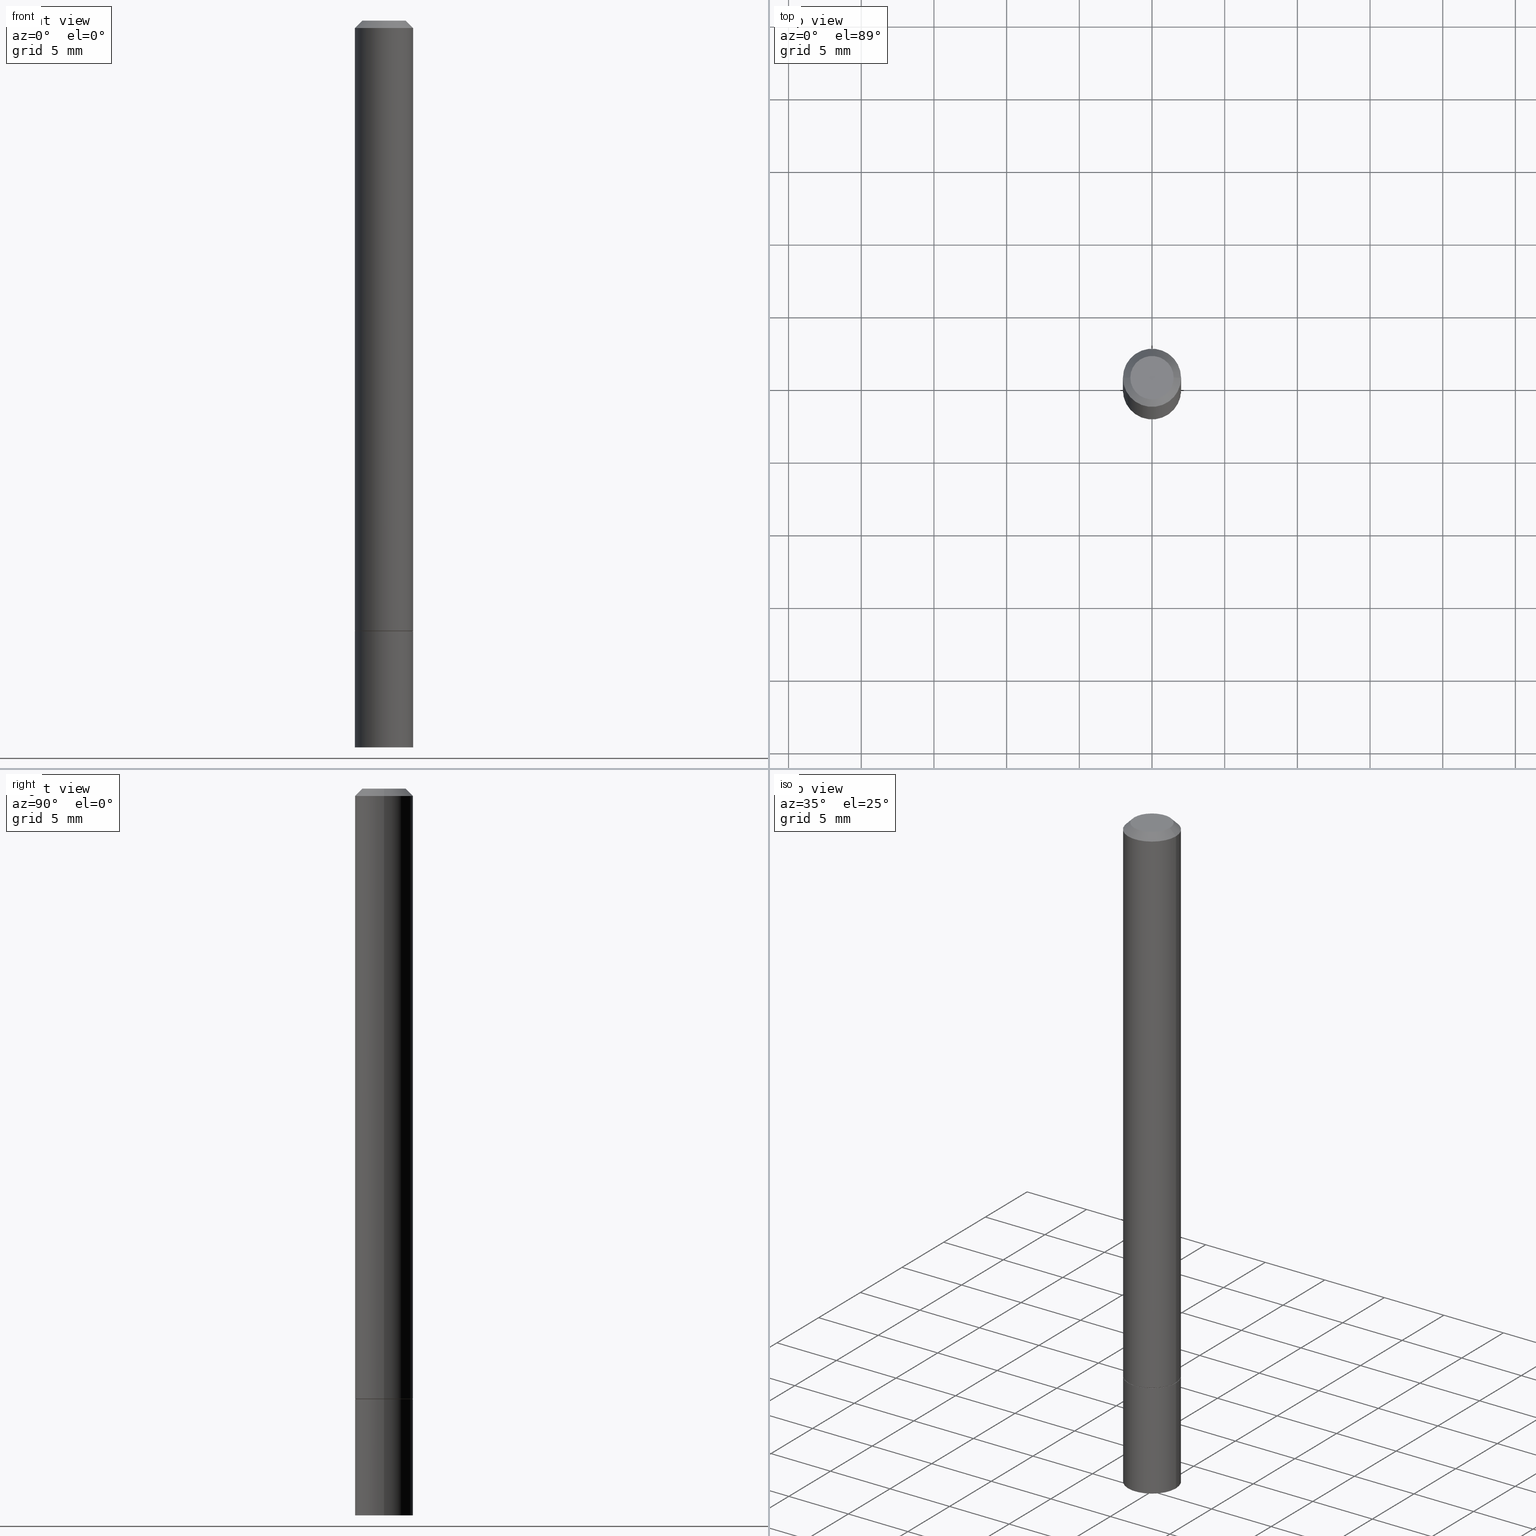
[diagram: canonical four-view strip — front | top / right | iso, engineering-drawing reading convention]
A machine part, canonical four-view strip (front | top / right | iso — engineering-drawing reading convention). The complete STEP part file that produces these views, byte-faithful:
ISO-10303-21;
HEADER;
FILE_DESCRIPTION (( 'STEP AP203' ),
    '1' );
FILE_NAME ('41629.STEP',
    '2024-02-28T02:33:20',
    ( '' ),
    ( '' ),
    'SwSTEP 2.0',
    'SolidWorks 2023',
    '' );
FILE_SCHEMA (( 'CONFIG_CONTROL_DESIGN' ));
ENDSEC;

DATA;
#1 = DIRECTION ( 'NONE',  ( 1.000000000000000000, -6.982962677686261977E-15, 0.000000000000000000 ) ) ;
#2 = CARTESIAN_POINT ( 'NONE',  ( 4.890937612370282792E-31, -6.982962677686303935E-17, -0.02000000000000003858 ) ) ;
#3 = EDGE_CURVE ( 'NONE', #166, #332, #105, .T. ) ;
#4 = DIRECTION ( 'NONE',  ( -2.445468806185136597E-29, 3.491481338843145583E-15, 1.000000000000000000 ) ) ;
#5 = AXIS2_PLACEMENT_3D ( 'NONE', #366, #215, #220 ) ;
#6 = AXIS2_PLACEMENT_3D ( 'NONE', #156, #128, #149 ) ;
#7 = CARTESIAN_POINT ( 'NONE',  ( 0.07874999999999987566, -5.499083108677926554E-16, 3.839989210939293411E-30 ) ) ;
#8 = DIRECTION ( 'NONE',  ( -1.000000000000000000, 6.982962677686265922E-15, -4.876176775795935793E-29 ) ) ;
#9 = PERSON_AND_ORGANIZATION ( #113, #144 ) ;
#10 = LINE ( 'NONE', #188, #79 ) ;
#11 = ORIENTED_EDGE ( 'NONE', *, *, #204, .F. ) ;
#12 = CIRCLE ( 'NONE', #61, 0.07774999999999999967 ) ;
#13 = PERSON_AND_ORGANIZATION ( #113, #144 ) ;
#14 = EDGE_LOOP ( 'NONE', ( #25, #300, #207, #162 ) ) ;
#15 = COORDINATED_UNIVERSAL_TIME_OFFSET ( 5, 0, .BEHIND. ) ;
#16 = VECTOR ( 'NONE', #175, 39.37007874015748854 ) ;
#17 = AXIS2_PLACEMENT_3D ( 'NONE', #161, #284, #18 ) ;
#18 = DIRECTION ( 'NONE',  ( 1.000000000000000000, -6.982962677686266711E-15, 4.876936021010750548E-29 ) ) ;
#19 = EDGE_CURVE ( 'NONE', #118, #73, #76, .T. ) ;
#20 = PLANE ( 'NONE',  #365 ) ;
#21 = FACE_OUTER_BOUND ( 'NONE', #263, .T. ) ;
#22 = CARTESIAN_POINT ( 'NONE',  ( 5.499083108678337748E-16, 0.07874999999999422740, -1.653500000000000192 ) ) ;
#23 =( CONVERSION_BASED_UNIT ( 'INCH', #329 ) LENGTH_UNIT ( ) NAMED_UNIT ( #154 ) );
#24 = ORIENTED_EDGE ( 'NONE', *, *, #19, .T. ) ;
#25 = ORIENTED_EDGE ( 'NONE', *, *, #226, .T. ) ;
#26 = CLOSED_SHELL ( 'NONE', ( #170, #306, #68, #98 ) ) ;
#27 = FACE_OUTER_BOUND ( 'NONE', #218, .T. ) ;
#28 = CC_DESIGN_APPROVAL ( #359, ( #186 ) ) ;
#29 = APPLICATION_CONTEXT ( 'configuration controlled 3d designs of mechanical parts and assemblies' ) ;
#30 = CARTESIAN_POINT ( 'NONE',  ( 4.043582671027123762E-29, -5.773164393777141860E-15, -1.653500000000000192 ) ) ;
#31 = ADVANCED_FACE ( 'NONE', ( #191 ), #135, .T. ) ;
#32 = PERSON_AND_ORGANIZATION_ROLE ( 'design_owner' ) ;
#33 = DIRECTION ( 'NONE',  ( 1.000000000000000000, -6.982962677686265922E-15, 4.876176775795935793E-29 ) ) ;
#34 = DIRECTION ( 'NONE',  ( -2.445468806185136877E-29, 3.491481338843145188E-15, 1.000000000000000000 ) ) ;
#35 = CIRCLE ( 'NONE', #260, 0.07874999999999977851 ) ;
#36 = AXIS2_PLACEMENT_3D ( 'NONE', #205, #45, #152 ) ;
#37 = CARTESIAN_POINT ( 'NONE',  ( 4.102490573140667000E-16, 0.05874999999999980238, -2.029902724119839009E-16 ) ) ;
#38 = ORIENTED_EDGE ( 'NONE', *, *, #270, .T. ) ;
#39 = EDGE_CURVE ( 'NONE', #166, #73, #142, .T. ) ;
#40 = ORIENTED_EDGE ( 'NONE', *, *, #110, .F. ) ;
#41 = CIRCLE ( 'NONE', #153, 0.07875000000000000056 ) ;
#42 = APPROVAL_PERSON_ORGANIZATION ( #59, #251, #224 ) ;
#43 = COORDINATED_UNIVERSAL_TIME_OFFSET ( 5, 0, .BEHIND. ) ;
#44 = DATE_AND_TIME ( #147, #195 ) ;
#45 = DIRECTION ( 'NONE',  ( -2.445468806185136597E-29, 3.491481338843145583E-15, 1.000000000000000000 ) ) ;
#46 = ORIENTED_EDGE ( 'NONE', *, *, #285, .T. ) ;
#47 = EDGE_CURVE ( 'NONE', #350, #51, #164, .T. ) ;
#48 = EDGE_LOOP ( 'NONE', ( #46, #320 ) ) ;
#49 = ORIENTED_EDGE ( 'NONE', *, *, #351, .T. ) ;
#50 =( NAMED_UNIT ( * ) PLANE_ANGLE_UNIT ( ) SI_UNIT ( $, .RADIAN. ) );
#51 = VERTEX_POINT ( 'NONE', #268 ) ;
#52 = ORIENTED_EDGE ( 'NONE', *, *, #216, .F. ) ;
#53 = PRODUCT_RELATED_PRODUCT_CATEGORY ( 'detail', '', ( #348 ) ) ;
#54 = ADVANCED_BREP_SHAPE_REPRESENTATION ( '41629', ( #120, #243, #163 ), #75 ) ;
#55 = EDGE_LOOP ( 'NONE', ( #11, #314 ) ) ;
#56 = DIRECTION ( 'NONE',  ( 1.000000000000000000, 0.000000000000000000, 0.000000000000000000 ) ) ;
#57 = FACE_OUTER_BOUND ( 'NONE', #274, .T. ) ;
#58 = CC_DESIGN_DATE_AND_TIME_ASSIGNMENT ( #44, #125, ( #82 ) ) ;
#59 = PERSON_AND_ORGANIZATION ( #113, #144 ) ;
#60 = CARTESIAN_POINT ( 'NONE',  ( -0.05874999999999980238, 4.451638707024978067E-16, 4.268512490097420695E-18 ) ) ;
#61 = AXIS2_PLACEMENT_3D ( 'NONE', #277, #250, #1 ) ;
#62 = CARTESIAN_POINT ( 'NONE',  ( -0.07875000000000000056, 5.595524044110789003E-16, -3.873661383575737792E-30 ) ) ;
#63 = DIRECTION ( 'NONE',  ( 1.000000000000000000, -6.982962677686261977E-15, 0.000000000000000000 ) ) ;
#64 = DIRECTION ( 'NONE',  ( 1.000000000000000000, -6.982962677686261977E-15, 0.000000000000000000 ) ) ;
#65 = COORDINATED_UNIVERSAL_TIME_OFFSET ( 5, 0, .BEHIND. ) ;
#66 = CARTESIAN_POINT ( 'NONE',  ( -0.07874999999999977851, 4.800786840909288642E-16, -0.02000000000000003858 ) ) ;
#67 = SECURITY_CLASSIFICATION_LEVEL ( 'unclassified' ) ;
#68 = ADVANCED_FACE ( 'NONE', ( #363 ), #20, .F. ) ;
#69 = EDGE_LOOP ( 'NONE', ( #246, #171, #213, #129 ) ) ;
#70 = APPROVAL_PERSON_ORGANIZATION ( #92, #132, #185 ) ;
#71 = PERSON_AND_ORGANIZATION ( #113, #144 ) ;
#72 = PLANE ( 'NONE',  #333 ) ;
#73 = VERTEX_POINT ( 'NONE', #358 ) ;
#74 =( NAMED_UNIT ( * ) SI_UNIT ( $, .STERADIAN. ) SOLID_ANGLE_UNIT ( ) );
#75 =( GEOMETRIC_REPRESENTATION_CONTEXT ( 3 ) GLOBAL_UNCERTAINTY_ASSIGNED_CONTEXT ( ( #331 ) ) GLOBAL_UNIT_ASSIGNED_CONTEXT ( ( #23, #50, #74 ) ) REPRESENTATION_CONTEXT ( 'NONE', 'WORKASPACE' ) );
#76 = LINE ( 'NONE', #247, #177 ) ;
#77 = CYLINDRICAL_SURFACE ( 'NONE', #141, 0.07875000000000000056 ) ;
#78 = ORIENTED_EDGE ( 'NONE', *, *, #3, .F. ) ;
#79 = VECTOR ( 'NONE', #190, 39.37007874015748854 ) ;
#80 = ORIENTED_EDGE ( 'NONE', *, *, #39, .T. ) ;
#81 = CARTESIAN_POINT ( 'NONE',  ( 0.000000000000000000, 0.000000000000000000, 0.000000000000000000 ) ) ;
#82 = PRODUCT_DEFINITION ( 'UNKNOWN', '', #186, #109 ) ;
#83 = APPLICATION_PROTOCOL_DEFINITION ( 'international standard', 'config_control_design', 1994, #29 ) ;
#84 = CARTESIAN_POINT ( 'NONE',  ( 4.043582671027123201E-29, -5.773164393777141072E-15, -1.653499999999999970 ) ) ;
#85 = AXIS2_PLACEMENT_3D ( 'NONE', #302, #308, #63 ) ;
#86 = LINE ( 'NONE', #7, #304 ) ;
#87 = APPROVAL_PERSON_ORGANIZATION ( #289, #359, #210 ) ;
#88 = MECHANICAL_CONTEXT ( 'NONE', #309, 'mechanical' ) ;
#89 = DIRECTION ( 'NONE',  ( 1.000000000000000000, -6.982962677686261977E-15, 0.000000000000000000 ) ) ;
#90 = LINE ( 'NONE', #62, #199 ) ;
#91 = DATE_AND_TIME ( #257, #311 ) ;
#92 = PERSON_AND_ORGANIZATION ( #113, #144 ) ;
#93 = CC_DESIGN_PERSON_AND_ORGANIZATION_ASSIGNMENT ( #121, #231, ( #178 ) ) ;
#94 = ORIENTED_EDGE ( 'NONE', *, *, #275, .F. ) ;
#95 = DATE_AND_TIME ( #151, #209 ) ;
#96 = AXIS2_PLACEMENT_3D ( 'NONE', #81, #104, #219 ) ;
#97 = APPROVAL_STATUS ( 'not_yet_approved' ) ;
#98 = ADVANCED_FACE ( 'NONE', ( #99 ), #77, .T. ) ;
#99 = FACE_OUTER_BOUND ( 'NONE', #356, .T. ) ;
#100 = CONICAL_SURFACE ( 'NONE', #294, 0.07874999999999977851, 0.7853981633974466137 ) ;
#101 = CARTESIAN_POINT ( 'NONE',  ( 0.07875000000000000056, -7.422889326380525053E-15, -1.968500000000000139 ) ) ;
#102 = ORIENTED_EDGE ( 'NONE', *, *, #200, .T. ) ;
#103 = VERTEX_POINT ( 'NONE', #297 ) ;
#104 = DIRECTION ( 'NONE',  ( -2.445468806185136597E-29, 3.491481338843145583E-15, 1.000000000000000000 ) ) ;
#105 = LINE ( 'NONE', #364, #340 ) ;
#106 = ADVANCED_FACE ( 'NONE', ( #21 ), #127, .T. ) ;
#107 = LINE ( 'NONE', #221, #262 ) ;
#108 = DIRECTION ( 'NONE',  ( -2.445468806185136597E-29, 3.491481338843145583E-15, 1.000000000000000000 ) ) ;
#109 = DESIGN_CONTEXT ( 'detailed design', #29, 'design' ) ;
#110 = EDGE_CURVE ( 'NONE', #290, #332, #134, .T. ) ;
#111 = CARTESIAN_POINT ( 'NONE',  ( 0.07774999999999999967, -6.316089741967248403E-15, -1.653500000000000192 ) ) ;
#112 = PLANE ( 'NONE',  #248 ) ;
#113 = PERSON ( 'UNSPECIFIED', 'UNSPECIFIED', 'UNSPECIFIED', ('UNSPECIFIED'), ('UNSPECIFIED'), ('UNSPECIFIED') ) ;
#114 = DIRECTION ( 'NONE',  ( -2.445468806185136597E-29, 3.491481338843145583E-15, 1.000000000000000000 ) ) ;
#115 = PERSON_AND_ORGANIZATION_ROLE ( 'design_supplier' ) ;
#116 = AXIS2_PLACEMENT_3D ( 'NONE', #307, #254, #197 ) ;
#117 = LOCAL_TIME ( 21, 33, 20.00000000000000000, #43 ) ;
#118 = VERTEX_POINT ( 'NONE', #111 ) ;
#119 = EDGE_CURVE ( 'NONE', #332, #192, #35, .T. ) ;
#120 = MANIFOLD_SOLID_BREP ( 'Body-Move/Copy2[1]', #26 ) ;
#121 = PERSON_AND_ORGANIZATION ( #113, #144 ) ;
#122 = FACE_OUTER_BOUND ( 'NONE', #69, .T. ) ;
#123 = EDGE_LOOP ( 'NONE', ( #322, #316, #318, #288 ) ) ;
#124 = CALENDAR_DATE ( 2024, 27, 2 ) ;
#125 = DATE_TIME_ROLE ( 'creation_date' ) ;
#126 = ORIENTED_EDGE ( 'NONE', *, *, #182, .T. ) ;
#127 = CONICAL_SURFACE ( 'NONE', #255, 0.07774999999999999967, 0.7853981633972775267 ) ;
#128 = DIRECTION ( 'NONE',  ( 2.445468806185136597E-29, -3.491481338843145583E-15, -1.000000000000000000 ) ) ;
#129 = ORIENTED_EDGE ( 'NONE', *, *, #119, .T. ) ;
#130 = DIRECTION ( 'NONE',  ( -2.445468806185136877E-29, 3.491481338843145188E-15, 1.000000000000000000 ) ) ;
#131 = DIRECTION ( 'NONE',  ( -2.445468806185136597E-29, 3.491481338843145583E-15, 1.000000000000000000 ) ) ;
#132 = APPROVAL ( #97, 'UNSPECIFIED' ) ;
#133 = CC_DESIGN_APPROVAL ( #132, ( #178 ) ) ;
#134 = LINE ( 'NONE', #245, #16 ) ;
#135 = CYLINDRICAL_SURFACE ( 'NONE', #96, 0.07874999999999987566 ) ;
#136 = DIRECTION ( 'NONE',  ( 0.7071067811864267805, -2.468850131080992517E-15, 0.7071067811866682540 ) ) ;
#137 = DIRECTION ( 'NONE',  ( 1.000000000000000000, -6.982962677686261977E-15, 0.000000000000000000 ) ) ;
#138 = FACE_OUTER_BOUND ( 'NONE', #240, .T. ) ;
#139 = APPROVAL_STATUS ( 'not_yet_approved' ) ;
#140 = CARTESIAN_POINT ( 'NONE',  ( -0.07875000000000000056, -2.360198865196497541E-15, -1.652499999999999858 ) ) ;
#141 = AXIS2_PLACEMENT_3D ( 'NONE', #325, #189, #269 ) ;
#142 = CIRCLE ( 'NONE', #5, 0.07875000000000000056 ) ;
#143 = DIRECTION ( 'NONE',  ( 1.000000000000000000, -6.982962677686261977E-15, 0.000000000000000000 ) ) ;
#144 = ORGANIZATION ( 'UNSPECIFIED', 'UNSPECIFIED', '' ) ;
#145 = PERSON_AND_ORGANIZATION_ROLE ( 'creator' ) ;
#146 = FACE_OUTER_BOUND ( 'NONE', #169, .T. ) ;
#147 = CALENDAR_DATE ( 2024, 27, 2 ) ;
#148 = ADVANCED_FACE ( 'NONE', ( #27 ), #100, .T. ) ;
#149 = DIRECTION ( 'NONE',  ( -1.000000000000000000, 6.982962677686265922E-15, 0.000000000000000000 ) ) ;
#150 = ORIENTED_EDGE ( 'NONE', *, *, #226, .F. ) ;
#151 = CALENDAR_DATE ( 2024, 27, 2 ) ;
#152 = DIRECTION ( 'NONE',  ( 1.000000000000000000, -6.982962677686266711E-15, 4.876176775795935793E-29 ) ) ;
#153 = AXIS2_PLACEMENT_3D ( 'NONE', #252, #108, #89 ) ;
#154 = DIMENSIONAL_EXPONENTS ( 1.000000000000000000, 0.000000000000000000, 0.000000000000000000, 0.000000000000000000, 0.000000000000000000, 0.000000000000000000, 0.000000000000000000 ) ;
#155 = CIRCLE ( 'NONE', #168, 0.07875000000000000056 ) ;
#156 = CARTESIAN_POINT ( 'NONE',  ( 4.890937612370282792E-31, -6.982962677686303935E-17, -0.02000000000000003858 ) ) ;
#157 = ADVANCED_FACE ( 'NONE', ( #146 ), #112, .F. ) ;
#158 = APPROVAL_DATE_TIME ( #259, #359 ) ;
#159 = DIRECTION ( 'NONE',  ( -2.445468806185136597E-29, 3.491481338843145583E-15, 1.000000000000000000 ) ) ;
#160 = ORIENTED_EDGE ( 'NONE', *, *, #345, .T. ) ;
#161 = CARTESIAN_POINT ( 'NONE',  ( -1.043851414335219820E-46, 1.490343170380447200E-32, 4.268512490100411279E-18 ) ) ;
#162 = ORIENTED_EDGE ( 'NONE', *, *, #19, .F. ) ;
#163 = AXIS2_PLACEMENT_3D ( 'NONE', #253, #173, #56 ) ;
#164 = LINE ( 'NONE', #335, #208 ) ;
#165 = CC_DESIGN_PERSON_AND_ORGANIZATION_ASSIGNMENT ( #9, #115, ( #186 ) ) ;
#166 = VERTEX_POINT ( 'NONE', #140 ) ;
#167 = DIRECTION ( 'NONE',  ( -2.445468806185136597E-29, 3.491481338843145583E-15, 1.000000000000000000 ) ) ;
#168 = AXIS2_PLACEMENT_3D ( 'NONE', #217, #131, #238 ) ;
#169 = EDGE_LOOP ( 'NONE', ( #150, #301 ) ) ;
#170 = ADVANCED_FACE ( 'NONE', ( #57 ), #282, .T. ) ;
#171 = ORIENTED_EDGE ( 'NONE', *, *, #180, .F. ) ;
#172 = PLANE ( 'NONE',  #295 ) ;
#173 = DIRECTION ( 'NONE',  ( 0.000000000000000000, 0.000000000000000000, 1.000000000000000000 ) ) ;
#174 = FACE_OUTER_BOUND ( 'NONE', #214, .T. ) ;
#175 = DIRECTION ( 'NONE',  ( -0.7071067811865462405, 2.468850131082243650E-15, -0.7071067811865486830 ) ) ;
#176 = CARTESIAN_POINT ( 'NONE',  ( 4.043582671027123201E-29, -5.773164393777141072E-15, -1.653499999999999970 ) ) ;
#177 = VECTOR ( 'NONE', #136, 39.37007874015748143 ) ;
#178 = SECURITY_CLASSIFICATION ( '', '', #67 ) ;
#179 = CARTESIAN_POINT ( 'NONE',  ( -0.07875000000000000056, -5.763520300233858771E-15, -1.968500000000000139 ) ) ;
#180 = EDGE_CURVE ( 'NONE', #290, #361, #278, .T. ) ;
#181 = DIRECTION ( 'NONE',  ( -1.000000000000000000, 6.982962677686265922E-15, -4.876176775795935793E-29 ) ) ;
#182 = EDGE_CURVE ( 'NONE', #73, #192, #86, .T. ) ;
#183 = CC_DESIGN_SECURITY_CLASSIFICATION ( #178, ( #186 ) ) ;
#184 = ORIENTED_EDGE ( 'NONE', *, *, #298, .T. ) ;
#185 = APPROVAL_ROLE ( '' ) ;
#186 = PRODUCT_DEFINITION_FORMATION_WITH_SPECIFIED_SOURCE ( 'ANY', '', #348, .NOT_KNOWN. ) ;
#187 = CC_DESIGN_PERSON_AND_ORGANIZATION_ASSIGNMENT ( #71, #261, ( #82 ) ) ;
#188 = CARTESIAN_POINT ( 'NONE',  ( 0.07874999999999977851, -6.100938441013696101E-16, -0.02000000000000003858 ) ) ;
#189 = DIRECTION ( 'NONE',  ( -2.445468806185136597E-29, 3.491481338843145583E-15, 1.000000000000000000 ) ) ;
#190 = DIRECTION ( 'NONE',  ( 0.7071067811865462405, -7.319954787623251312E-15, -0.7071067811865486830 ) ) ;
#191 = FACE_OUTER_BOUND ( 'NONE', #123, .T. ) ;
#192 = VERTEX_POINT ( 'NONE', #203 ) ;
#193 = EDGE_CURVE ( 'NONE', #73, #166, #41, .T. ) ;
#194 = AXIS2_PLACEMENT_3D ( 'NONE', #176, #310, #143 ) ;
#195 = LOCAL_TIME ( 21, 33, 20.00000000000000000, #65 ) ;
#196 = VERTEX_POINT ( 'NONE', #201 ) ;
#197 = DIRECTION ( 'NONE',  ( 1.000000000000000000, -6.982962677686265922E-15, 4.876176775795935232E-29 ) ) ;
#198 = DIRECTION ( 'NONE',  ( -2.445468806185136597E-29, 3.491481338843145583E-15, 1.000000000000000000 ) ) ;
#199 = VECTOR ( 'NONE', #202, 39.37007874015748143 ) ;
#200 = EDGE_CURVE ( 'NONE', #235, #103, #90, .T. ) ;
#201 = CARTESIAN_POINT ( 'NONE',  ( -0.07774999999999999967, -5.215418962375440876E-15, -1.653500000000000192 ) ) ;
#202 = DIRECTION ( 'NONE',  ( -2.445468806185136877E-29, 3.491481338843145188E-15, 1.000000000000000000 ) ) ;
#203 = CARTESIAN_POINT ( 'NONE',  ( 0.07874999999999977851, -6.100938441013696101E-16, -0.02000000000000003858 ) ) ;
#204 = EDGE_CURVE ( 'NONE', #350, #235, #241, .T. ) ;
#205 = CARTESIAN_POINT ( 'NONE',  ( 0.000000000000000000, 0.000000000000000000, 0.000000000000000000 ) ) ;
#206 = APPROVAL_DATE_TIME ( #95, #251 ) ;
#207 = ORIENTED_EDGE ( 'NONE', *, *, #193, .F. ) ;
#208 = VECTOR ( 'NONE', #296, 39.37007874015748143 ) ;
#209 = LOCAL_TIME ( 21, 33, 20.00000000000000000, #286 ) ;
#210 = APPROVAL_ROLE ( '' ) ;
#211 = ORIENTED_EDGE ( 'NONE', *, *, #204, .T. ) ;
#212 = CARTESIAN_POINT ( 'NONE',  ( 0.05874999999999980238, -5.065740507352228268E-16, 4.268512490103616797E-18 ) ) ;
#213 = ORIENTED_EDGE ( 'NONE', *, *, #110, .T. ) ;
#214 = EDGE_LOOP ( 'NONE', ( #78, #80, #126, #237 ) ) ;
#215 = DIRECTION ( 'NONE',  ( -2.445468806185136597E-29, 3.491481338843145583E-15, 1.000000000000000000 ) ) ;
#216 = EDGE_CURVE ( 'NONE', #103, #51, #266, .T. ) ;
#217 = CARTESIAN_POINT ( 'NONE',  ( 4.813905344975441835E-29, -6.872981015512731707E-15, -1.968500000000000139 ) ) ;
#218 = EDGE_LOOP ( 'NONE', ( #293, #160, #184, #40 ) ) ;
#219 = DIRECTION ( 'NONE',  ( 1.000000000000000000, -6.982962677686266711E-15, 4.876176775795935793E-29 ) ) ;
#220 = DIRECTION ( 'NONE',  ( 1.000000000000000000, -6.982962677686261977E-15, 0.000000000000000000 ) ) ;
#221 = CARTESIAN_POINT ( 'NONE',  ( -0.07774999999999999967, -5.220717416723664067E-15, -1.653500000000000192 ) ) ;
#222 = CC_DESIGN_PERSON_AND_ORGANIZATION_ASSIGNMENT ( #13, #145, ( #186 ) ) ;
#223 = DIRECTION ( 'NONE',  ( -2.438088387897960049E-29, 3.491481338843145188E-15, 1.000000000000000000 ) ) ;
#224 = APPROVAL_ROLE ( '' ) ;
#225 = DIRECTION ( 'NONE',  ( 2.445468806185136597E-29, -3.491481338843145583E-15, -1.000000000000000000 ) ) ;
#226 = EDGE_CURVE ( 'NONE', #118, #196, #317, .T. ) ;
#227 = CARTESIAN_POINT ( 'NONE',  ( 4.043582671027123762E-29, -5.773164393777141860E-15, -1.653500000000000192 ) ) ;
#228 = FACE_OUTER_BOUND ( 'NONE', #14, .T. ) ;
#229 = CLOSED_SHELL ( 'NONE', ( #244, #31, #148, #338, #291, #106, #157, #264 ) ) ;
#230 = ORIENTED_EDGE ( 'NONE', *, *, #39, .F. ) ;
#231 = PERSON_AND_ORGANIZATION_ROLE ( 'classification_officer' ) ;
#232 = ORIENTED_EDGE ( 'NONE', *, *, #47, .F. ) ;
#233 = DIRECTION ( 'NONE',  ( 1.000000000000000000, -6.982962677686265922E-15, 0.000000000000000000 ) ) ;
#234 = CIRCLE ( 'NONE', #242, 0.07874999999999977851 ) ;
#235 = VERTEX_POINT ( 'NONE', #179 ) ;
#236 = PRODUCT_DEFINITION_SHAPE ( 'NONE', 'NONE',  #82 ) ;
#237 = ORIENTED_EDGE ( 'NONE', *, *, #119, .F. ) ;
#238 = DIRECTION ( 'NONE',  ( 1.000000000000000000, -6.982962677686261977E-15, 0.000000000000000000 ) ) ;
#239 = DIRECTION ( 'NONE',  ( 2.438088387897960049E-29, -3.491481338843145188E-15, -1.000000000000000000 ) ) ;
#240 = EDGE_LOOP ( 'NONE', ( #267, #273 ) ) ;
#241 = CIRCLE ( 'NONE', #85, 0.07875000000000000056 ) ;
#242 = AXIS2_PLACEMENT_3D ( 'NONE', #352, #159, #233 ) ;
#243 = MANIFOLD_SOLID_BREP ( 'Body-Move/Copy2[2]', #229 ) ;
#244 = ADVANCED_FACE ( 'NONE', ( #228 ), #341, .T. ) ;
#245 = CARTESIAN_POINT ( 'NONE',  ( -0.07874999999999977851, 4.800786840909288642E-16, -0.02000000000000003858 ) ) ;
#246 = ORIENTED_EDGE ( 'NONE', *, *, #345, .F. ) ;
#247 = CARTESIAN_POINT ( 'NONE',  ( 0.07774999999999999967, -6.316089741967248403E-15, -1.653500000000000192 ) ) ;
#248 = AXIS2_PLACEMENT_3D ( 'NONE', #30, #223, #33 ) ;
#249 = CIRCLE ( 'NONE', #17, 0.05874999999999980238 ) ;
#250 = DIRECTION ( 'NONE',  ( -2.445468806185136597E-29, 3.491481338843145583E-15, 1.000000000000000000 ) ) ;
#251 = APPROVAL ( #139, 'UNSPECIFIED' ) ;
#252 = CARTESIAN_POINT ( 'NONE',  ( 4.041137202220937598E-29, -5.769672912438298064E-15, -1.652499999999999858 ) ) ;
#253 = CARTESIAN_POINT ( 'NONE',  ( 0.000000000000000000, 0.000000000000000000, 0.000000000000000000 ) ) ;
#254 = DIRECTION ( 'NONE',  ( -2.445468806185136597E-29, 3.491481338843145583E-15, 1.000000000000000000 ) ) ;
#255 = AXIS2_PLACEMENT_3D ( 'NONE', #328, #167, #271 ) ;
#256 = CARTESIAN_POINT ( 'NONE',  ( -1.043851414335219820E-46, 1.490343170380447200E-32, 4.268512490100411279E-18 ) ) ;
#257 = CALENDAR_DATE ( 2024, 27, 2 ) ;
#258 = DIRECTION ( 'NONE',  ( 2.438088387897960049E-29, -3.491481338843145188E-15, -1.000000000000000000 ) ) ;
#259 = DATE_AND_TIME ( #124, #287 ) ;
#260 = AXIS2_PLACEMENT_3D ( 'NONE', #281, #4, #280 ) ;
#261 = PERSON_AND_ORGANIZATION_ROLE ( 'creator' ) ;
#262 = VECTOR ( 'NONE', #337, 39.37007874015748143 ) ;
#263 = EDGE_LOOP ( 'NONE', ( #94, #38, #24, #230 ) ) ;
#264 = ADVANCED_FACE ( 'NONE', ( #138 ), #172, .F. ) ;
#265 = DATE_AND_TIME ( #346, #117 ) ;
#266 = CIRCLE ( 'NONE', #194, 0.07875000000000000056 ) ;
#267 = ORIENTED_EDGE ( 'NONE', *, *, #180, .T. ) ;
#268 = CARTESIAN_POINT ( 'NONE',  ( 0.07875000000000000056, -6.323072704644934417E-15, -1.653499999999999970 ) ) ;
#269 = DIRECTION ( 'NONE',  ( 1.000000000000000000, -6.982962677686265922E-15, 4.876176775795935232E-29 ) ) ;
#270 = EDGE_CURVE ( 'NONE', #196, #118, #12, .T. ) ;
#271 = DIRECTION ( 'NONE',  ( 1.000000000000000000, -6.982962677686261977E-15, 0.000000000000000000 ) ) ;
#272 = CONICAL_SURFACE ( 'NONE', #6, 0.07874999999999977851, 0.7853981633974466137 ) ;
#273 = ORIENTED_EDGE ( 'NONE', *, *, #334, .T. ) ;
#274 = EDGE_LOOP ( 'NONE', ( #211, #102, #357, #232 ) ) ;
#275 = EDGE_CURVE ( 'NONE', #196, #166, #107, .T. ) ;
#276 = APPLICATION_PROTOCOL_DEFINITION ( 'international standard', 'config_control_design', 1994, #309 ) ;
#277 = CARTESIAN_POINT ( 'NONE',  ( 4.043582671027123762E-29, -5.773164393777141860E-15, -1.653500000000000192 ) ) ;
#278 = CIRCLE ( 'NONE', #323, 0.05874999999999980238 ) ;
#279 = CC_DESIGN_APPROVAL ( #251, ( #82 ) ) ;
#280 = DIRECTION ( 'NONE',  ( 1.000000000000000000, -6.982962677686265922E-15, 0.000000000000000000 ) ) ;
#281 = CARTESIAN_POINT ( 'NONE',  ( 4.890937612370282792E-31, -6.982962677686303935E-17, -0.02000000000000003858 ) ) ;
#282 = CYLINDRICAL_SURFACE ( 'NONE', #116, 0.07875000000000000056 ) ;
#283 = DIRECTION ( 'NONE',  ( -2.445468806185136597E-29, 3.491481338843145583E-15, 1.000000000000000000 ) ) ;
#284 = DIRECTION ( 'NONE',  ( -2.445468806185136597E-29, 3.491481338843145583E-15, 1.000000000000000000 ) ) ;
#285 = EDGE_CURVE ( 'NONE', #51, #103, #324, .T. ) ;
#286 = COORDINATED_UNIVERSAL_TIME_OFFSET ( 5, 0, .BEHIND. ) ;
#287 = LOCAL_TIME ( 21, 33, 20.00000000000000000, #15 ) ;
#288 = ORIENTED_EDGE ( 'NONE', *, *, #182, .F. ) ;
#289 = PERSON_AND_ORGANIZATION ( #113, #144 ) ;
#290 = VERTEX_POINT ( 'NONE', #60 ) ;
#291 = ADVANCED_FACE ( 'NONE', ( #174 ), #349, .T. ) ;
#292 = COORDINATED_UNIVERSAL_TIME_OFFSET ( 5, 0, .BEHIND. ) ;
#293 = ORIENTED_EDGE ( 'NONE', *, *, #334, .F. ) ;
#294 = AXIS2_PLACEMENT_3D ( 'NONE', #2, #225, #342 ) ;
#295 = AXIS2_PLACEMENT_3D ( 'NONE', #37, #258, #8 ) ;
#296 = DIRECTION ( 'NONE',  ( -2.445468806185136877E-29, 3.491481338843145188E-15, 1.000000000000000000 ) ) ;
#297 = CARTESIAN_POINT ( 'NONE',  ( -0.07875000000000000056, -5.763520300233858771E-15, -1.653499999999999970 ) ) ;
#298 = EDGE_CURVE ( 'NONE', #192, #332, #234, .T. ) ;
#299 = DIRECTION ( 'NONE',  ( -1.000000000000000000, 6.982962677686265922E-15, -4.876176775795935793E-29 ) ) ;
#300 = ORIENTED_EDGE ( 'NONE', *, *, #275, .T. ) ;
#301 = ORIENTED_EDGE ( 'NONE', *, *, #270, .F. ) ;
#302 = CARTESIAN_POINT ( 'NONE',  ( 4.813905344975441835E-29, -6.872981015512731707E-15, -1.968500000000000139 ) ) ;
#303 = DIRECTION ( 'NONE',  ( 1.000000000000000000, -6.982962677686261977E-15, 0.000000000000000000 ) ) ;
#304 = VECTOR ( 'NONE', #34, 39.37007874015748143 ) ;
#305 = AXIS2_PLACEMENT_3D ( 'NONE', #227, #343, #64 ) ;
#306 = ADVANCED_FACE ( 'NONE', ( #319 ), #72, .T. ) ;
#307 = CARTESIAN_POINT ( 'NONE',  ( 0.000000000000000000, 0.000000000000000000, 0.000000000000000000 ) ) ;
#308 = DIRECTION ( 'NONE',  ( -2.445468806185136597E-29, 3.491481338843145583E-15, 1.000000000000000000 ) ) ;
#309 = APPLICATION_CONTEXT ( 'configuration controlled 3d designs of mechanical parts and assemblies' ) ;
#310 = DIRECTION ( 'NONE',  ( -2.445468806185136597E-29, 3.491481338843145583E-15, 1.000000000000000000 ) ) ;
#311 = LOCAL_TIME ( 21, 33, 20.00000000000000000, #292 ) ;
#312 = DIRECTION ( 'NONE',  ( 2.438088387897960049E-29, -3.491481338843145188E-15, -1.000000000000000000 ) ) ;
#313 = CC_DESIGN_PERSON_AND_ORGANIZATION_ASSIGNMENT ( #336, #32, ( #348 ) ) ;
#314 = ORIENTED_EDGE ( 'NONE', *, *, #351, .F. ) ;
#315 = APPROVAL_STATUS ( 'not_yet_approved' ) ;
#316 = ORIENTED_EDGE ( 'NONE', *, *, #3, .T. ) ;
#317 = CIRCLE ( 'NONE', #305, 0.07774999999999999967 ) ;
#318 = ORIENTED_EDGE ( 'NONE', *, *, #298, .F. ) ;
#319 = FACE_OUTER_BOUND ( 'NONE', #55, .T. ) ;
#320 = ORIENTED_EDGE ( 'NONE', *, *, #216, .T. ) ;
#321 =( LENGTH_UNIT ( ) NAMED_UNIT ( * ) SI_UNIT ( $, .METRE. ) );
#322 = ORIENTED_EDGE ( 'NONE', *, *, #193, .T. ) ;
#323 = AXIS2_PLACEMENT_3D ( 'NONE', #256, #114, #339 ) ;
#324 = CIRCLE ( 'NONE', #353, 0.07875000000000000056 ) ;
#325 = CARTESIAN_POINT ( 'NONE',  ( 0.000000000000000000, 0.000000000000000000, 0.000000000000000000 ) ) ;
#326 = SHAPE_DEFINITION_REPRESENTATION ( #236, #54 ) ;
#327 = CC_DESIGN_DATE_AND_TIME_ASSIGNMENT ( #265, #354, ( #178 ) ) ;
#328 = CARTESIAN_POINT ( 'NONE',  ( 4.043582671027123762E-29, -5.773164393777141860E-15, -1.653500000000000192 ) ) ;
#329 = LENGTH_MEASURE_WITH_UNIT ( LENGTH_MEASURE( 0.02539999999999999897 ), #321 );
#330 = ORIENTED_EDGE ( 'NONE', *, *, #47, .T. ) ;
#331 = UNCERTAINTY_MEASURE_WITH_UNIT (LENGTH_MEASURE( 1.000000000000000082E-05 ), #23, 'distance_accuracy_value', 'NONE');
#332 = VERTEX_POINT ( 'NONE', #66 ) ;
#333 = AXIS2_PLACEMENT_3D ( 'NONE', #355, #312, #181 ) ;
#334 = EDGE_CURVE ( 'NONE', #361, #290, #249, .T. ) ;
#335 = CARTESIAN_POINT ( 'NONE',  ( 0.07875000000000000056, -5.499083108677934443E-16, 3.839989210939299016E-30 ) ) ;
#336 = PERSON_AND_ORGANIZATION ( #113, #144 ) ;
#337 = DIRECTION ( 'NONE',  ( -0.7071067811864267805, 7.493145998869918709E-15, 0.7071067811866682540 ) ) ;
#338 = ADVANCED_FACE ( 'NONE', ( #122 ), #272, .T. ) ;
#339 = DIRECTION ( 'NONE',  ( 1.000000000000000000, -6.982962677686266711E-15, 4.876936021010750548E-29 ) ) ;
#340 = VECTOR ( 'NONE', #130, 39.37007874015748143 ) ;
#341 = CONICAL_SURFACE ( 'NONE', #360, 0.07774999999999999967, 0.7853981633972775267 ) ;
#342 = DIRECTION ( 'NONE',  ( -1.000000000000000000, 6.982962677686265922E-15, 0.000000000000000000 ) ) ;
#343 = DIRECTION ( 'NONE',  ( -2.445468806185136597E-29, 3.491481338843145583E-15, 1.000000000000000000 ) ) ;
#344 = CARTESIAN_POINT ( 'NONE',  ( 4.043582671027123762E-29, -5.773164393777141860E-15, -1.653500000000000192 ) ) ;
#345 = EDGE_CURVE ( 'NONE', #361, #192, #10, .T. ) ;
#346 = CALENDAR_DATE ( 2024, 27, 2 ) ;
#347 = ORIENTED_EDGE ( 'NONE', *, *, #200, .F. ) ;
#348 = PRODUCT ( '41629', '41629', '', ( #88 ) ) ;
#349 = CYLINDRICAL_SURFACE ( 'NONE', #36, 0.07874999999999987566 ) ;
#350 = VERTEX_POINT ( 'NONE', #101 ) ;
#351 = EDGE_CURVE ( 'NONE', #235, #350, #155, .T. ) ;
#352 = CARTESIAN_POINT ( 'NONE',  ( 4.890937612370282792E-31, -6.982962677686303935E-17, -0.02000000000000003858 ) ) ;
#353 = AXIS2_PLACEMENT_3D ( 'NONE', #84, #198, #303 ) ;
#354 = DATE_TIME_ROLE ( 'classification_date' ) ;
#355 = CARTESIAN_POINT ( 'NONE',  ( 5.499083108678415648E-16, 0.07874999999999311717, -1.968500000000000361 ) ) ;
#356 = EDGE_LOOP ( 'NONE', ( #347, #49, #330, #52 ) ) ;
#357 = ORIENTED_EDGE ( 'NONE', *, *, #285, .F. ) ;
#358 = CARTESIAN_POINT ( 'NONE',  ( 0.07875000000000000056, -6.319581223306091410E-15, -1.652499999999999858 ) ) ;
#359 = APPROVAL ( #315, 'UNSPECIFIED' ) ;
#360 = AXIS2_PLACEMENT_3D ( 'NONE', #344, #283, #137 ) ;
#361 = VERTEX_POINT ( 'NONE', #212 ) ;
#362 = APPROVAL_DATE_TIME ( #91, #132 ) ;
#363 = FACE_OUTER_BOUND ( 'NONE', #48, .T. ) ;
#364 = CARTESIAN_POINT ( 'NONE',  ( -0.07874999999999987566, 5.595524044110780128E-16, -3.873661383575732186E-30 ) ) ;
#365 = AXIS2_PLACEMENT_3D ( 'NONE', #22, #239, #299 ) ;
#366 = CARTESIAN_POINT ( 'NONE',  ( 4.041137202220937598E-29, -5.769672912438298064E-15, -1.652499999999999858 ) ) ;
ENDSEC;
END-ISO-10303-21;
